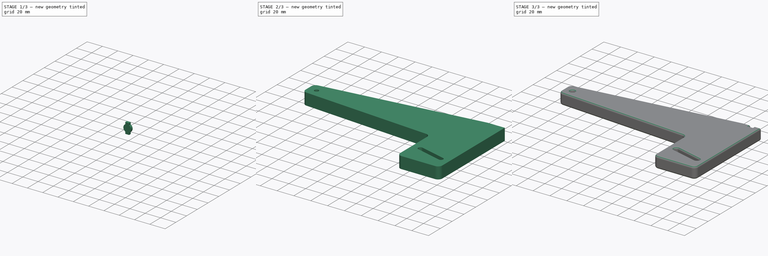
[diagram: build sequence overview — one tinted view per stage of 3, left to right]
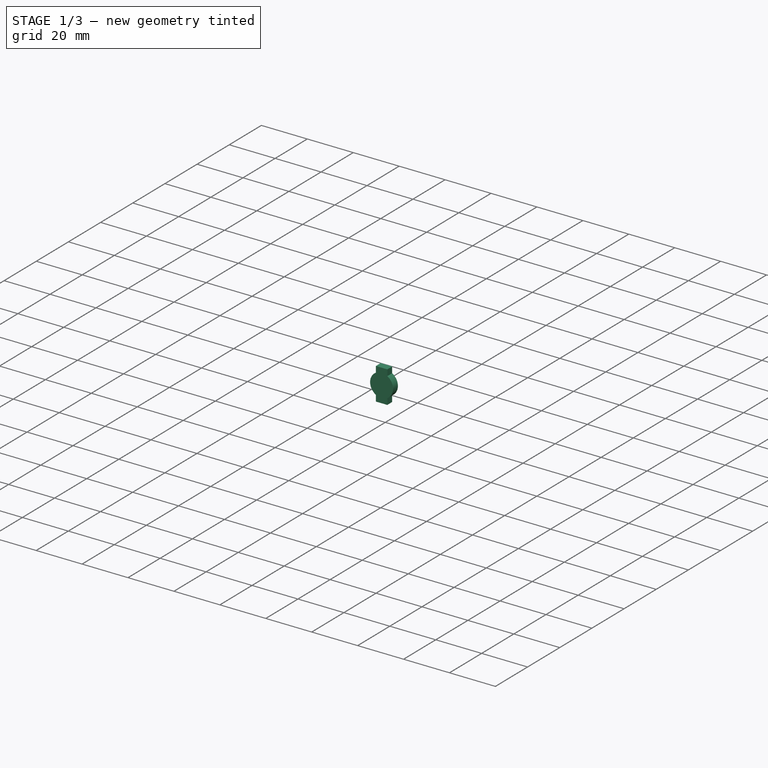
[diagram: stage 1 of 3 — iso view after this stage's code; geometry added in this stage tinted green]
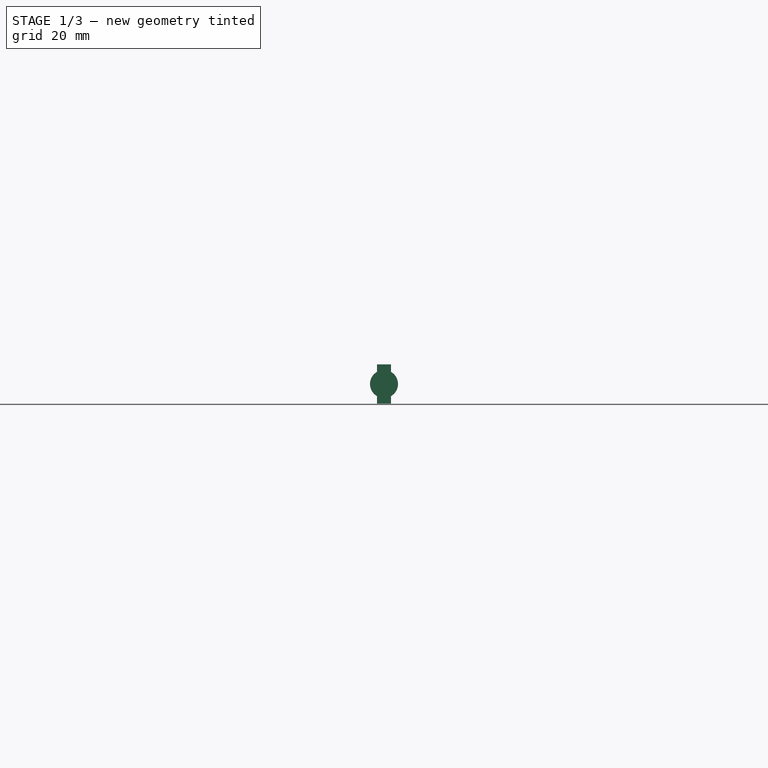
[diagram: stage 1 of 3 — front view after this stage's code; geometry added in this stage tinted green]
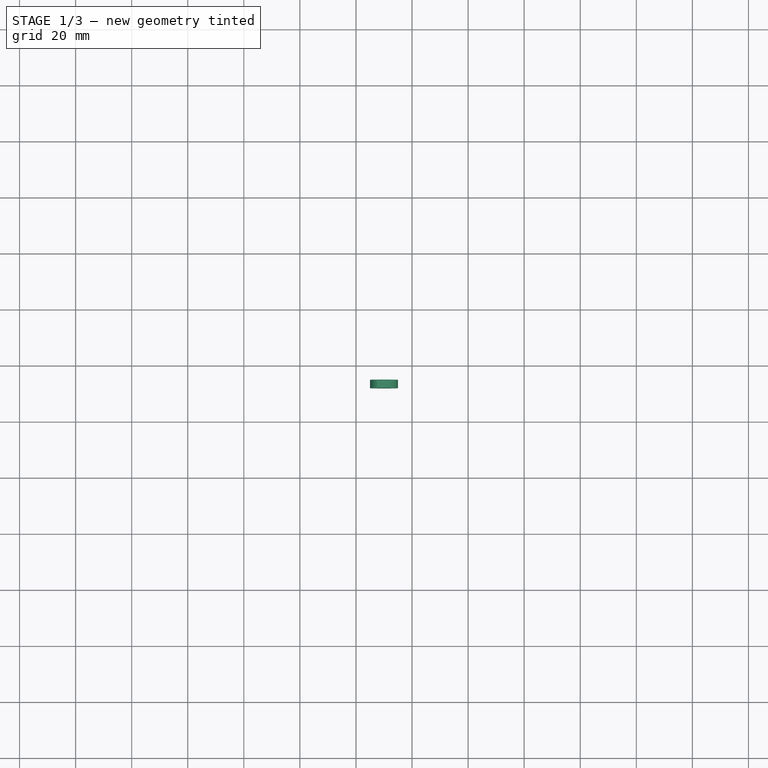
[diagram: stage 1 of 3 — top view after this stage's code; geometry added in this stage tinted green]
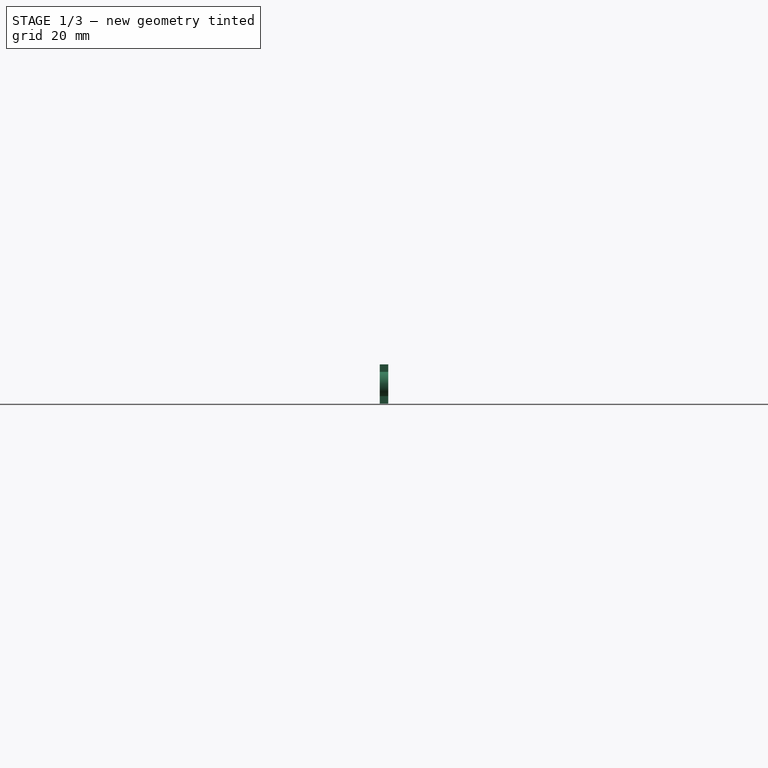
[diagram: stage 1 of 3 — right view after this stage's code; geometry added in this stage tinted green]
FCSTD DOCUMENT  (FreeCAD 0.21R33771 (Git))
Label: bellcrank
License: Public Domain
LicenseURL: https://en.wikipedia.org/wiki/Public_domain
objects: PartDesign::Line×4, Part::Cut×2, PartDesign::CoordinateSystem×1, Sketcher::SketchObject×1, Image::ImagePlane×1, Part::Extrusion×1, Part::Cylinder×1, Part::Box×1, Part::Fillet×1, App::Part×1
note: 12 computed .brp shape members not serialized (recipe doc carries the construction recipe); baked Part::Feature solids carry a one-line shape summary decoded from their .brp

FEATURE [Part::Cylinder] Cylinder  label="Mag Mount"
  Angle = 360
  AttacherType = Attacher::AttachEngine3D
  FirstAngle = 0
  Height = 3
  Placement = pos=(70,75,7) rot=(1,0,0;1.5708rad)
  Radius = 5
  SecondAngle = 0
FEATURE [Part::Box] Box  label="Mag Slot"
  AttacherType = Attacher::AttachEngine3D
  Height = 14
  Length = 5
  Placement = pos=(67.5,72,0) rot=(0,0,1;0rad)
  Width = 3
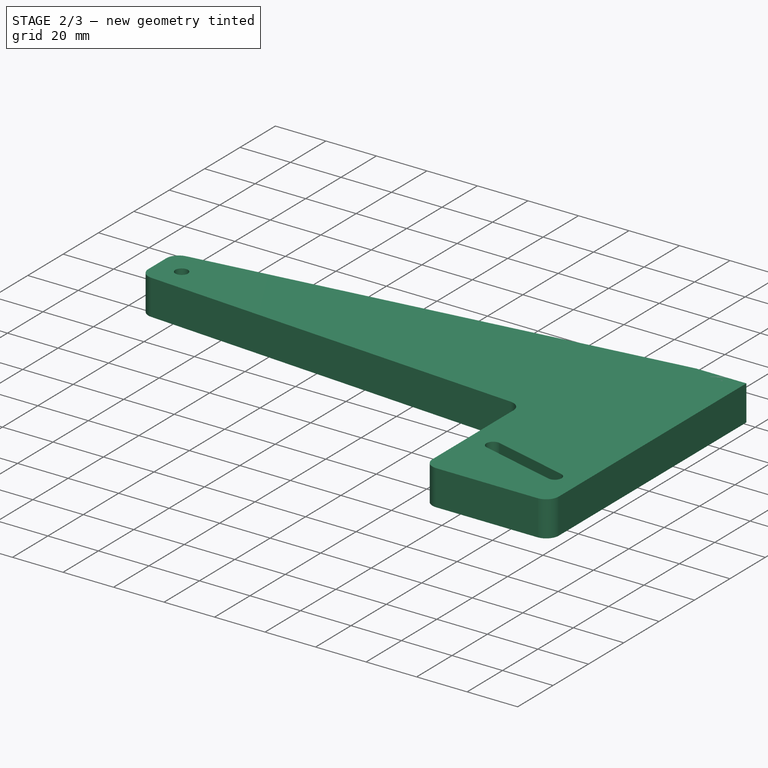
[diagram: stage 2 of 3 — iso view after this stage's code; geometry added in this stage tinted green]
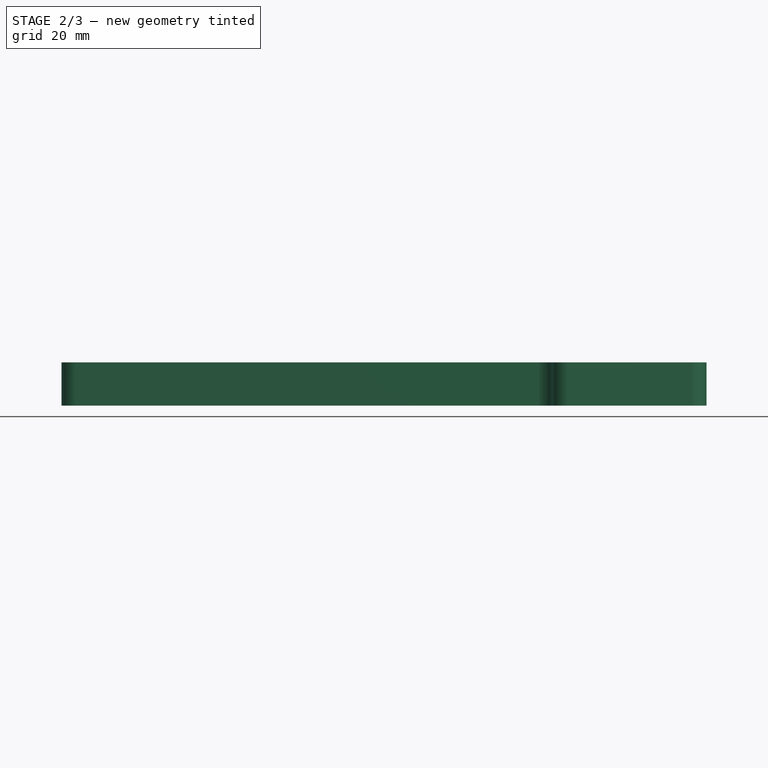
[diagram: stage 2 of 3 — front view after this stage's code; geometry added in this stage tinted green]
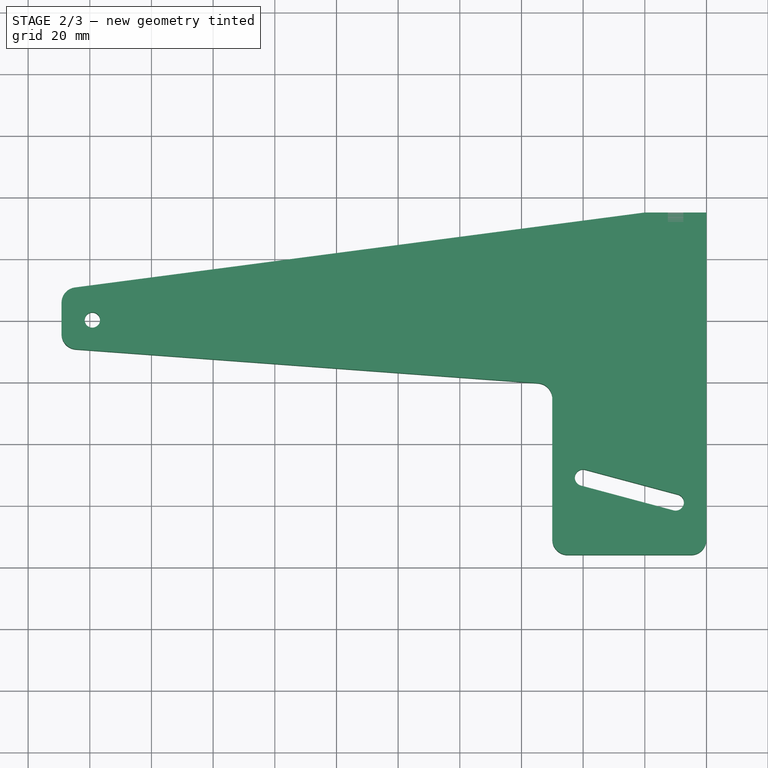
[diagram: stage 2 of 3 — top view after this stage's code; geometry added in this stage tinted green]
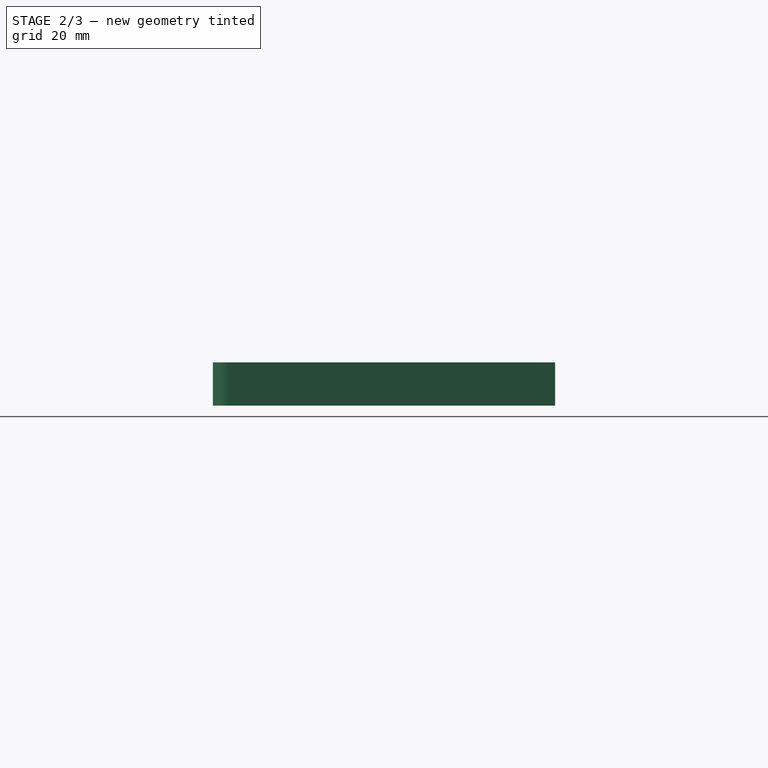
[diagram: stage 2 of 3 — right view after this stage's code; geometry added in this stage tinted green]
FEATURE [PartDesign::CoordinateSystem] LCS_Origin
  AttacherType = Attacher::AttachEngine3D
  MapMode = 2
  Support = -> [X_Axis]
FEATURE [Sketcher::SketchObject] Sketch  label="profile"
  FullyConstrained = false
  sketch-geometry (18):
    g0: LineSegment StartX=80 StartY=75 StartZ=0 EndX=80 EndY=-31.024 EndZ=0
    g1: LineSegment StartX=75 StartY=-36.024 StartZ=0 EndX=35 EndY=-36.024 EndZ=0
    g2: LineSegment StartX=30 StartY=-31.024 StartZ=0 EndX=30 EndY=14.6774 EndZ=0
    g3: LineSegment StartX=25.3659 StartY=19.664 StartZ=0 EndX=-124.532 EndY=30.6645 EndZ=0
    g4: LineSegment StartX=-129.166 StartY=35.6511 StartZ=0 EndX=-129.166 EndY=45.7264 EndZ=0
    g5: LineSegment StartX=60.0137 StartY=75 StartZ=0 EndX=-124.818 EndY=50.6837 EndZ=0
    g6: LineSegment StartX=60.0137 StartY=75 StartZ=0 EndX=80 EndY=75 EndZ=0
    g7: ArcOfCircle CenterX=-124.166 CenterY=45.7264 CenterZ=0 NormalX=0 NormalY=0 NormalZ=1 AngleXU=0 Radius=5 StartAngle=1.7016 EndAngle=3.14159
    g8: ArcOfCircle CenterX=-124.166 CenterY=35.6511 CenterZ=0 NormalX=0 NormalY=0 NormalZ=1 AngleXU=0 Radius=5 StartAngle=3.14159 EndAngle=4.63913
    g9: ArcOfCircle CenterX=25 CenterY=14.6774 CenterZ=0 NormalX=0 NormalY=0 NormalZ=1 AngleXU=0 Radius=5 StartAngle=0 EndAngle=1.49754
    g10: ArcOfCircle CenterX=35 CenterY=-31.024 CenterZ=0 NormalX=0 NormalY=0 NormalZ=1 AngleXU=0 Radius=5 StartAngle=3.14159 EndAngle=4.71239
    g11: ArcOfCircle CenterX=75 CenterY=-31.024 CenterZ=0 NormalX=0 NormalY=0 NormalZ=1 AngleXU=0 Radius=5 StartAngle=4.71239 EndAngle=6.28319
    g12: ArcOfCircle CenterX=40 CenterY=-10.9808 CenterZ=0 NormalX=0 NormalY=0 NormalZ=1 AngleXU=0 Radius=2.69172 StartAngle=1.309 EndAngle=4.45059
    g13: ArcOfCircle CenterX=70 CenterY=-19.0192 CenterZ=0 NormalX=0 NormalY=0 NormalZ=1 AngleXU=0 Radius=2.69172 StartAngle=4.45059 EndAngle=7.59218
    g14: LineSegment StartX=39.3033 StartY=-13.5808 StartZ=0 EndX=69.3033 EndY=-21.6192 EndZ=0
    g15: LineSegment StartX=70.6967 StartY=-16.4192 StartZ=0 EndX=40.6967 EndY=-8.38076 EndZ=0
    g16: Circle CenterX=-119.166 CenterY=40.1525 CenterZ=0 NormalX=0 NormalY=0 NormalZ=1 AngleXU=0 Radius=2.5
    g17: GeomPoint X=55 Y=-15 Z=0
  constraints (37):
    c: Vertical(g0)
    c: Horizontal(g1)
    c: Vertical(g2)
    c: Vertical(g4)
    c: Coincident(g6,g5)
    c: Horizontal(g6)
    c: Coincident(g0,g6)
    c: Tangent(g5,g7) = -1.5708
    c: Tangent(g4,g7) = 1.5708
    c: Tangent(g4,g8) = 1.5708
    c: Tangent(g3,g8) = 1.5708
    c: Tangent(g3,g9) = -1.5708
    c: Tangent(g2,g9) = -1.5708
    c: Tangent(g2,g10) = 1.5708
    c: Tangent(g1,g10) = 1.5708
    c: Tangent(g0,g11) = 1.5708
    c: Tangent(g1,g11) = 1.5708
    c: Equal(g11,g10)
    c: Equal(g10,g9)
    c: Equal(g9,g8)
    c: Equal(g8,g7)
    c: Radius(g8) = 5
    c: Tangent(g12,g14) = -1.5708
    c: Tangent(g14,g13) = -1.5708
    c: Tangent(g13,g15) = -1.5708
    c: Tangent(g15,g12) = -1.5708
    c: Equal(g12,g13)
    c: DistanceX(g12,g13) = 30
    c: DistanceY(g13,g13) = 5.2
    c: DistanceX(g13,g0) = 10
    c: Radius(g16) = 2.5
    c: DistanceY(g5) = 75
    c: DistanceX(g4,g16) = 10
    c: Symmetric(g12,g13,g17)
    c: DistanceX(g17) = 55
    c: DistanceY(g17) = -15
    c: Angle(g14) = -0.261799
FEATURE [Image::ImagePlane] for_bellcrank  label="for bellcrank"
  XSize = 300.34
  YSize = 169.745
FEATURE [Part::Extrusion] Extrude
  Base = -> Sketch
  Dir = (0,0,1)
  DirMode = 2
  FaceMakerClass = Part::FaceMakerBullseye
  LengthFwd = 14
  LengthRev = 0
  Solid = true
  Symmetric = false
FEATURE [Part::Cut] Cut
  Base = -> Extrude
  Tool = -> Cylinder
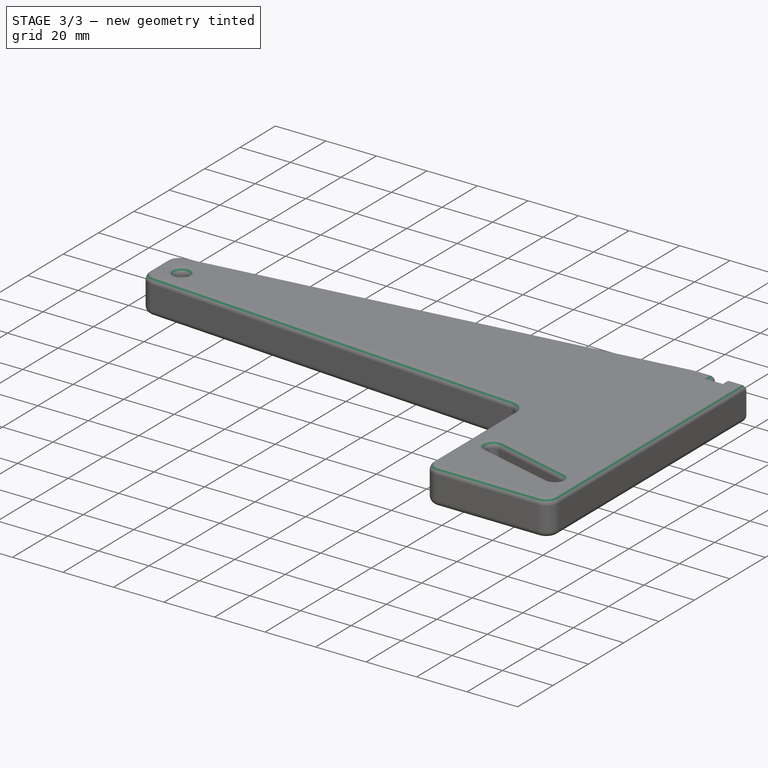
[diagram: stage 3 of 3 — iso view after this stage's code; geometry added in this stage tinted green]
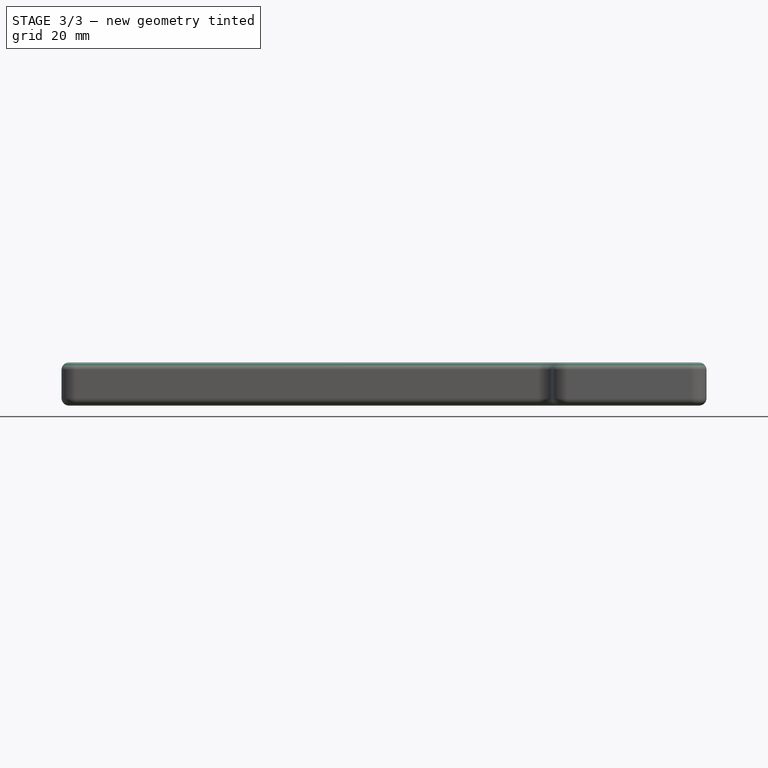
[diagram: stage 3 of 3 — front view after this stage's code; geometry added in this stage tinted green]
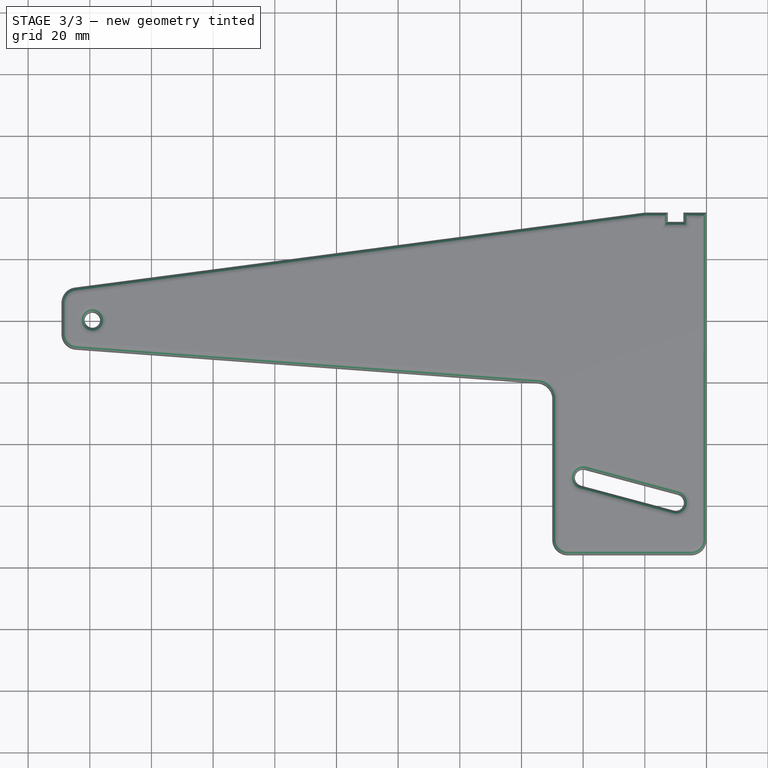
[diagram: stage 3 of 3 — top view after this stage's code; geometry added in this stage tinted green]
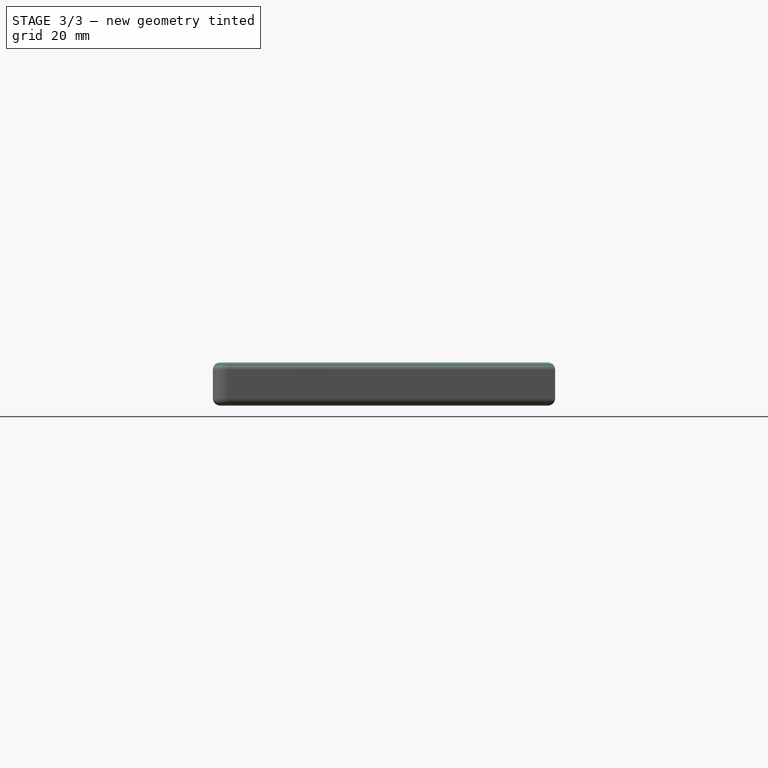
[diagram: stage 3 of 3 — right view after this stage's code; geometry added in this stage tinted green]
FEATURE [Part::Cut] Cut001
  Base = -> Cut
  Tool = -> Box
FEATURE [Part::Fillet] Fillet
  Base = -> Cut001
  Edges = 42 edges r=2.4: [Edge1,Edge5,Edge7,Edge8,Edge9,Edge10,Edge11,Edge12,Edge13,Edge14,Edge15,Edge16,Edge17,Edge18,Edge19,Edge20,Edge21,Edge22,Edge23,Edge24,Edge25,Edge26,Edge32,Edge33,Edge34,Edge35,Edge36,Edge37,Edge38,Edge39,Edge40,Edge41,Edge42,Edge43,Edge44,Edge45,Edge46,Edge47,Edge48,Edge49,Edge50,Edge51]
FEATURE [PartDesign::Line] HoleAxis_1  label="Axle AP 1"
  AttacherType = Attacher::AttachEngineLine
  Length = 7.04534
  MapMode = 19
  Placement = pos=(-119.166,40.1525,14) rot=(0,0,1;0rad)
  ResizeMode = 1
  Support = -> [Cut001]
FEATURE [PartDesign::Line] HoleAxis_2  label="Cam Pin AP"
  AttacherType = Attacher::AttachEngineLine
  Length = 5.80532
  MapMode = 19
  Placement = pos=(40,-10.9808,14) rot=(0,0,1;1.309rad)
  ResizeMode = 1
  Support = -> [Cut001]
FEATURE [PartDesign::Line] HoleAxis_3  label="Magnet AP"
  AttacherType = Attacher::AttachEngineLine
  Length = 9.00456
  MapMode = 19
  Placement = pos=(70,75,7) rot=(0.377964,-0.654654,0.654654;2.41886rad)
  ResizeMode = 1
  Support = -> [Fillet]
FEATURE [PartDesign::Line] HoleAxis_4  label="Axle AP 2"
  AttacherType = Attacher::AttachEngineLine
  AttachmentOffset = pos=(0,0,0) rot=(0,1,0;3.14159rad)
  Length = 7.04534
  MapMode = 19
  Placement = pos=(-119.166,40.1525,0) rot=(0,1,0;3.14159rad)
  ResizeMode = 1
  Support = -> [Cut001]
FEATURE [App::Part] Bellcrank
  Group = -> [LCS_Origin,Extrude,Cylinder,Box,Cut,Sketch,Cut001,Fillet,HoleAxis_1,HoleAxis_2,HoleAxis_3,HoleAxis_4]
  Origin = -> Origin
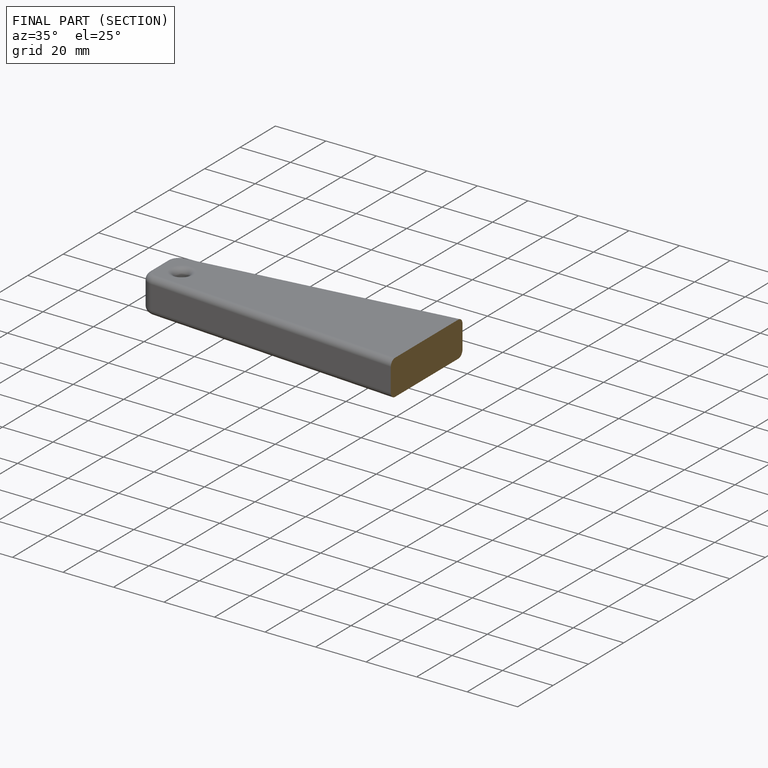
[diagram: finished part — half-section view (interior)]
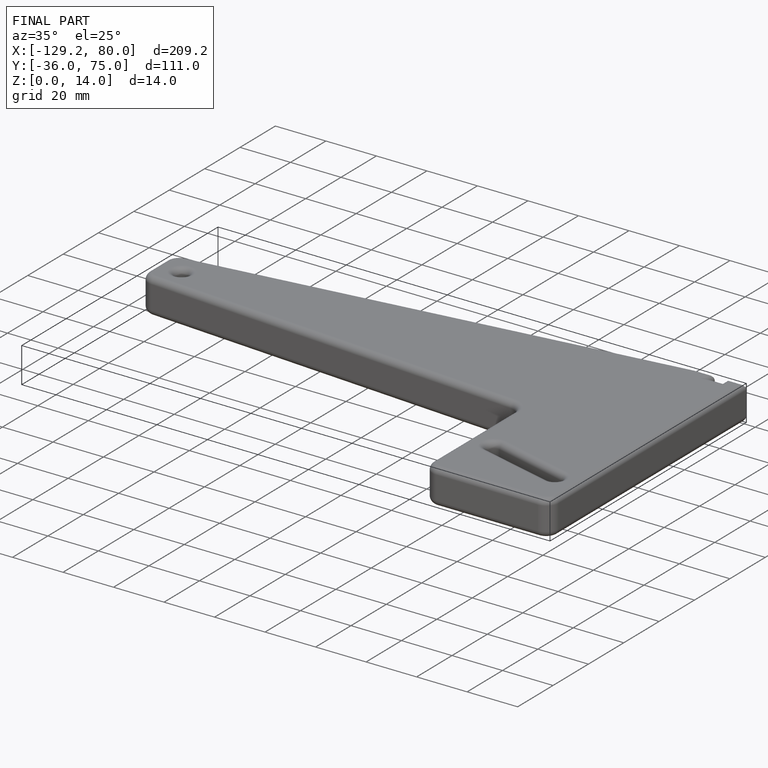
[diagram: finished part — iso view with bounding-box wireframe]
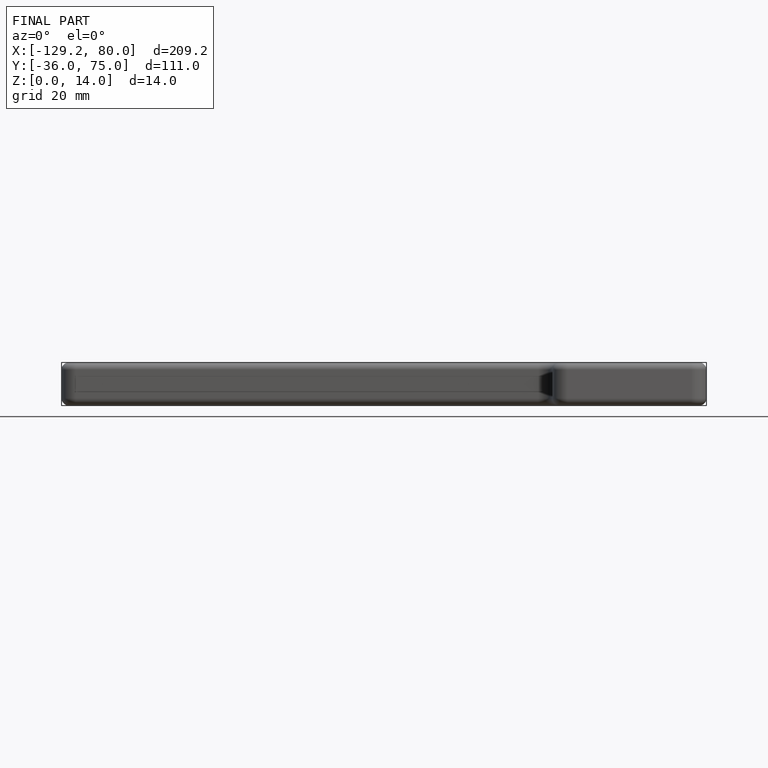
[diagram: finished part — front view with bounding-box wireframe]
